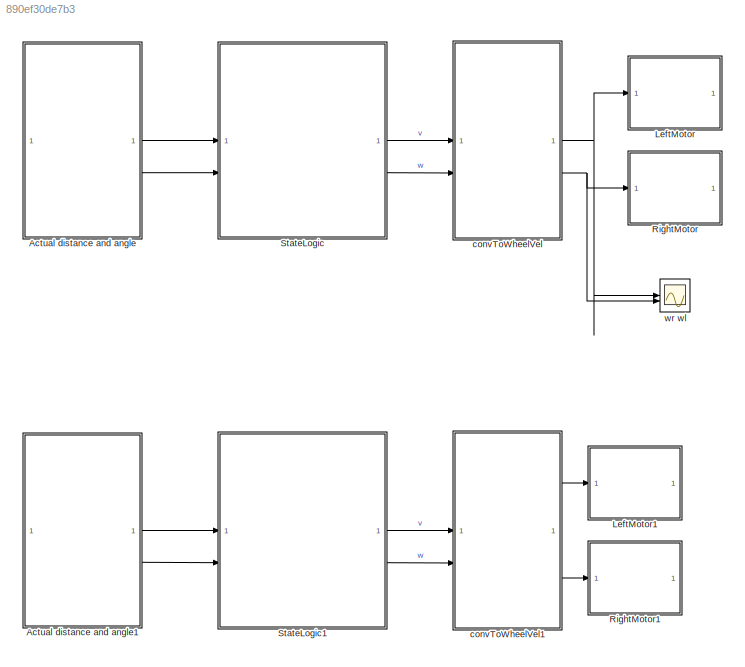
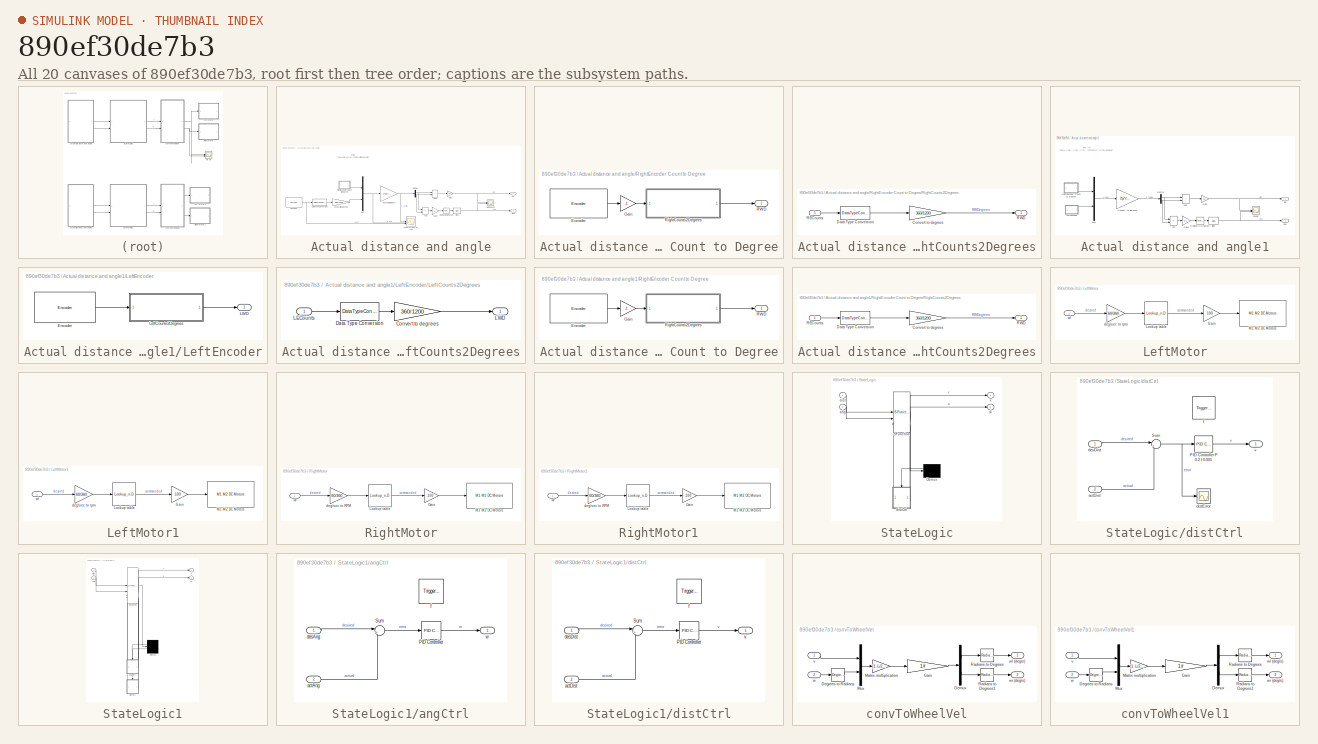
[diagram: thumbnail index - all 20 canvases of the model, root first then tree order]
MODEL slx_890ef30de7b3
KIND model
CONFIG AbsTol = auto
CONFIG EnableMultiTasking = on
CONFIG FixedStep = TS
CONFIG MaxStep = auto
CONFIG MinStep = auto
CONFIG PostLoadFcn = params\nload('motorResponse.mat')
CONFIG RelTol = 1e-3
CONFIG SampleTimeConstraint = Unconstrained
CONFIG SolverName = FixedStepAuto
CONFIG StartTime = 0.0
CONFIG StopTime = inf
WORKSPACE source: mxarray member
WORKSPACE TS = 0.01
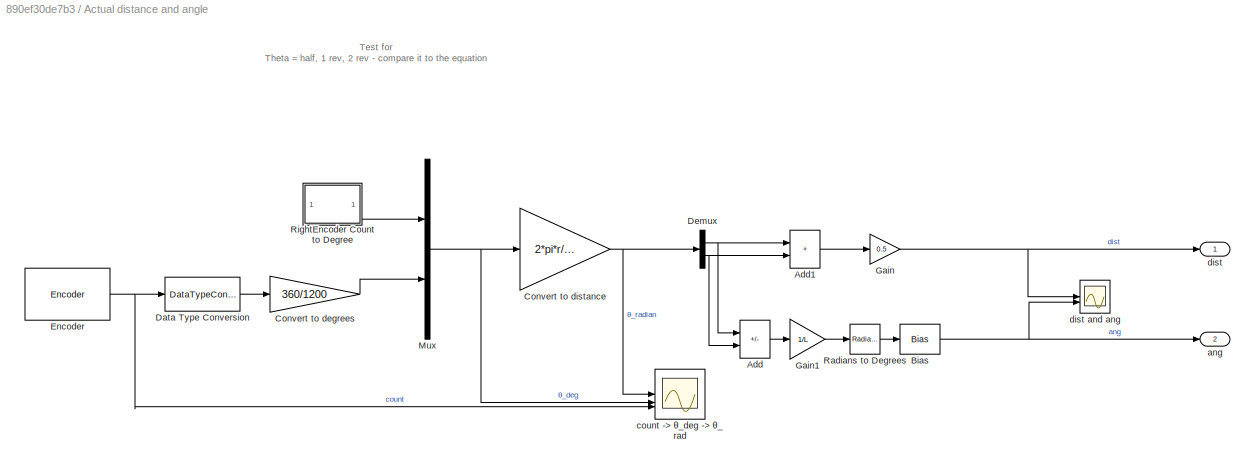
BLOCK [SubSystem] Actual distance and angle
BLOCK [Sum] Actual distance and angle/Add
  IconShape = rectangular
  Inputs = +-
BLOCK [Sum] Actual distance and angle/Add1
  IconShape = rectangular
BLOCK [Bias] Actual distance and angle/Bias
  Bias = StartTheta
  SaturateOnIntegerOverflow = off
BLOCK [Gain] Actual distance and angle/Convert to degrees
  Gain = 360/1200
BLOCK [Gain] Actual distance and angle/Convert to distance
  Gain = 2*pi*r/360
BLOCK [DataTypeConversion] Actual distance and angle/Data Type Conversion
  OutDataTypeStr = double
  RndMeth = Floor
  SaturateOnIntegerOverflow = off
BLOCK [Demux] Actual distance and angle/Demux
  Outputs = 2
BLOCK [Reference] Actual distance and angle/Encoder  REF=arduinomotorcarrierlib/Encoder
  SourceBlock = arduinomotorcarrierlib/Encoder
  SourceType = motorcarrier.blocks.mkrmotorcarrier_Encoder
BLOCK [Gain] Actual distance and angle/Gain
  Gain = 0.5
BLOCK [Gain] Actual distance and angle/Gain1
  Gain = 1/L
BLOCK [Mux] Actual distance and angle/Mux
  DisplayOption = bar
  Inputs = 2
BLOCK [Reference] Actual distance and angle/Radians to Degrees  REF=simulink_extras/Transformations/Radians
to Degrees
  SourceBlock = simulink_extras/Transformations/Radians\nto Degrees
  SourceType = RadiansToDegrees
BLOCK [SubSystem] Actual distance and angle/RightEncoder Count to Degree
BLOCK [Reference] Actual distance and angle/RightEncoder Count to Degree/Encoder  REF=arduinomotorcarrierlib/Encoder
  SourceBlock = arduinomotorcarrierlib/Encoder
  SourceType = motorcarrier.blocks.mkrmotorcarrier_Encoder
BLOCK [Gain] Actual distance and angle/RightEncoder Count to Degree/Gain
  Gain = -1
BLOCK [Outport] Actual distance and angle/RightEncoder Count to Degree/RWD
  VectorParamsAs1DForOutWhenUnconnected = off
BLOCK [SubSystem] Actual distance and angle/RightEncoder Count to Degree/RightCounts2Degrees
BLOCK [Gain] Actual distance and angle/RightEncoder Count to Degree/RightCounts2Degrees/Convert to degrees
  Gain = 360/1200
BLOCK [DataTypeConversion] Actual distance and angle/RightEncoder Count to Degree/RightCounts2Degrees/Data Type Conversion
  OutDataTypeStr = double
  RndMeth = Floor
  SaturateOnIntegerOverflow = off
BLOCK [Inport] Actual distance and angle/RightEncoder Count to Degree/RightCounts2Degrees/RECounts
BLOCK [Outport] Actual distance and angle/RightEncoder Count to Degree/RightCounts2Degrees/RWD
  VectorParamsAs1DForOutWhenUnconnected = off
BLOCK [Outport] Actual distance and angle/ang
  Port = 2
  VectorParamsAs1DForOutWhenUnconnected = off
BLOCK [Scope] Actual distance and angle/count -> θ_deg -> θ_rad
  Floating = off
  NumInputPorts = 3
  ScopeSpecificationString = Simulink.scopes.TimeScopeBlockCfg('CurrentConfiguration', extmgr.ConfigurationSet(extmgr.Configuration('Core','General UI',true),extmgr.Configuration('Core','Source UI',true),extmgr.Configuration('Sources','WiredSimulink',true,'DataLoggingVariableName','ScopeData2'),extmgr.Configuration('Visuals','Time Domain',true,'SerializedDisplays',{struct('MinYLimReal','41.80773','MaxYLimReal','65.28131','YLa...<+2305ch>
BLOCK [Outport] Actual distance and angle/dist
  VectorParamsAs1DForOutWhenUnconnected = off
BLOCK [Scope] Actual distance and angle/dist and ang
  Floating = off
  NumInputPorts = 2
  ScopeSpecificationString = Simulink.scopes.TimeScopeBlockCfg('CurrentConfiguration', extmgr.ConfigurationSet(extmgr.Configuration('Core','General UI',true),extmgr.Configuration('Core','Source UI',true),extmgr.Configuration('Sources','WiredSimulink',true),extmgr.Configuration('Visuals','Time Domain',true,'SerializedDisplays',{struct('MinYLimReal','43.54452','MaxYLimReal','63.54452','YLabelReal','','MinYLimMag','43.54452','Ma...<+2201ch>
BLOCK [SubSystem] Actual distance and angle1
  Commented = on
BLOCK [Sum] Actual distance and angle1/Add
  IconShape = rectangular
  Inputs = +-
BLOCK [Sum] Actual distance and angle1/Add1
  IconShape = rectangular
BLOCK [Bias] Actual distance and angle1/Bias
  Bias = StartTheta
  SaturateOnIntegerOverflow = off
BLOCK [Gain] Actual distance and angle1/Convert to distance
  Gain = 2*pi*r/360
BLOCK [Demux] Actual distance and angle1/Demux
  Outputs = 2
BLOCK [Gain] Actual distance and angle1/Gain
  Gain = 0.5
BLOCK [Gain] Actual distance and angle1/Gain1
  Gain = 1/L
BLOCK [SubSystem] Actual distance and angle1/LeftEncoder
BLOCK [Reference] Actual distance and angle1/LeftEncoder/Encoder  REF=arduinomotorcarrierlib/Encoder
  SourceBlock = arduinomotorcarrierlib/Encoder
  SourceType = motorcarrier.blocks.mkrmotorcarrier_Encoder
BLOCK [Outport] Actual distance and angle1/LeftEncoder/LWD
  VectorParamsAs1DForOutWhenUnconnected = off
BLOCK [SubSystem] Actual distance and angle1/LeftEncoder/LeftCounts2Degrees
BLOCK [Gain] Actual distance and angle1/LeftEncoder/LeftCounts2Degrees/Convert to degrees
  Gain = 360/1200
BLOCK [DataTypeConversion] Actual distance and angle1/LeftEncoder/LeftCounts2Degrees/Data Type Conversion
  OutDataTypeStr = double
  RndMeth = Floor
  SaturateOnIntegerOverflow = off
BLOCK [Inport] Actual distance and angle1/LeftEncoder/LeftCounts2Degrees/LECounts
BLOCK [Outport] Actual distance and angle1/LeftEncoder/LeftCounts2Degrees/LWD
  VectorParamsAs1DForOutWhenUnconnected = off
BLOCK [Mux] Actual distance and angle1/Mux
  DisplayOption = bar
  Inputs = 2
BLOCK [Reference] Actual distance and angle1/Radians to Degrees  REF=simulink_extras/Transformations/Radians
to Degrees
  SourceBlock = simulink_extras/Transformations/Radians\nto Degrees
  SourceType = RadiansToDegrees
BLOCK [SubSystem] Actual distance and angle1/RightEncoder Count to Degree
BLOCK [Reference] Actual distance and angle1/RightEncoder Count to Degree/Encoder  REF=arduinomotorcarrierlib/Encoder
  SourceBlock = arduinomotorcarrierlib/Encoder
  SourceType = motorcarrier.blocks.mkrmotorcarrier_Encoder
BLOCK [Gain] Actual distance and angle1/RightEncoder Count to Degree/Gain
  Gain = -1
BLOCK [Outport] Actual distance and angle1/RightEncoder Count to Degree/RWD
  VectorParamsAs1DForOutWhenUnconnected = off
BLOCK [SubSystem] Actual distance and angle1/RightEncoder Count to Degree/RightCounts2Degrees
BLOCK [Gain] Actual distance and angle1/RightEncoder Count to Degree/RightCounts2Degrees/Convert to degrees
  Gain = 360/1200
BLOCK [DataTypeConversion] Actual distance and angle1/RightEncoder Count to Degree/RightCounts2Degrees/Data Type Conversion
  OutDataTypeStr = double
  RndMeth = Floor
  SaturateOnIntegerOverflow = off
BLOCK [Inport] Actual distance and angle1/RightEncoder Count to Degree/RightCounts2Degrees/RECounts
BLOCK [Outport] Actual distance and angle1/RightEncoder Count to Degree/RightCounts2Degrees/RWD
  VectorParamsAs1DForOutWhenUnconnected = off
BLOCK [Scope] Actual distance and angle1/Scope
  Floating = off
  NumInputPorts = 2
  ScopeSpecificationString = Simulink.scopes.TimeScopeBlockCfg('CurrentConfiguration', extmgr.ConfigurationSet(extmgr.Configuration('Core','General UI',true),extmgr.Configuration('Core','Source UI',true),extmgr.Configuration('Sources','WiredSimulink',true),extmgr.Configuration('Visuals','Time Domain',true,'SerializedDisplays',{struct('MinYLimReal','-0.45209','MaxYLimReal','4.06885','YLabelReal','','MinYLimMag','0.00000','MaxY...<+2168ch>
BLOCK [Outport] Actual distance and angle1/ang
  Port = 2
  VectorParamsAs1DForOutWhenUnconnected = off
BLOCK [Outport] Actual distance and angle1/dist
  VectorParamsAs1DForOutWhenUnconnected = off
BLOCK [SubSystem] LeftMotor
BLOCK [Gain] LeftMotor/Gain
  Gain = 100
BLOCK [Lookup_n-D] LeftMotor/Lookup table
  BreakpointsForDimension1 = speedMono
  InputPortMap = u0
  InternalRulePriority = Speed
  NumberOfTableDimensions = 1
  RndMeth = Simplest
  Table = PWMcmdMono
  UseLastTableValue = on
BLOCK [Reference] LeftMotor/M1 M2 DC Motors  REF=arduinomotorcarrierlib/M1 M2 DC Motors
  SourceBlock = arduinomotorcarrierlib/M1 M2 DC Motors
  SourceType = DC Motor
BLOCK [Gain] LeftMotor/deg//sec to rpm
  Gain = 60/360
BLOCK [Inport] LeftMotor/wl
BLOCK [SubSystem] LeftMotor1
  Commented = on
BLOCK [Gain] LeftMotor1/Gain
  Gain = 100
BLOCK [Lookup_n-D] LeftMotor1/Lookup table
  BreakpointsForDimension1 = speedMono
  InputPortMap = u0
  InternalRulePriority = Speed
  NumberOfTableDimensions = 1
  RndMeth = Simplest
  Table = PWMcmdMono
  UseLastTableValue = on
BLOCK [Reference] LeftMotor1/M1 M2 DC Motors  REF=arduinomotorcarrierlib/M1 M2 DC Motors
  SourceBlock = arduinomotorcarrierlib/M1 M2 DC Motors
  SourceType = DC Motor
BLOCK [Gain] LeftMotor1/deg//sec to rpm
  Gain = 60/360
BLOCK [Inport] LeftMotor1/wl
BLOCK [SubSystem] RightMotor
BLOCK [Gain] RightMotor/Gain
  Gain = -100
BLOCK [Lookup_n-D] RightMotor/Lookup table
  BreakpointsForDimension1 = speedMono
  InputPortMap = u0
  InternalRulePriority = Speed
  NumberOfTableDimensions = 1
  RndMeth = Simplest
  Table = PWMcmdMono
  UseLastTableValue = on
BLOCK [Reference] RightMotor/M1 M2 DC Motors  REF=arduinomotorcarrierlib/M1 M2 DC Motors
  SourceBlock = arduinomotorcarrierlib/M1 M2 DC Motors
  SourceType = DC Motor
BLOCK [Gain] RightMotor/deg//sec to RPM
  Gain = 60/360
BLOCK [Inport] RightMotor/wr
BLOCK [SubSystem] RightMotor1
  Commented = on
BLOCK [Gain] RightMotor1/Gain
  Gain = -100
BLOCK [Lookup_n-D] RightMotor1/Lookup table
  BreakpointsForDimension1 = speedMono
  InputPortMap = u0
  InternalRulePriority = Speed
  NumberOfTableDimensions = 1
  RndMeth = Simplest
  Table = PWMcmdMono
  UseLastTableValue = on
BLOCK [Reference] RightMotor1/M1 M2 DC Motors  REF=arduinomotorcarrierlib/M1 M2 DC Motors
  SourceBlock = arduinomotorcarrierlib/M1 M2 DC Motors
  SourceType = DC Motor
BLOCK [Gain] RightMotor1/deg//sec to RPM
  Gain = 60/360
BLOCK [Inport] RightMotor1/wr
BLOCK [SubSystem] StateLogic
  ErrorFcn = Stateflow.Translate.translate
  PermitHierarchicalResolution = ExplicitOnly
  SFBlockType = Chart
  TreatAsAtomicUnit = on
BLOCK [Demux] StateLogic/ Demux 
  Outputs = 1
BLOCK [S-Function] StateLogic/ SFunction 
  EnableBusSupport = on
  FunctionName = sf_sfun
  PortCounts = [3 5]
  SFcnIsStateOwnerBlock = off
  SFunctionDeploymentMode = off
  Tag = Stateflow S-Function 3
BLOCK [Inport] StateLogic/ang
  Port = 2
BLOCK [Inport] StateLogic/dist
BLOCK [SubSystem] StateLogic/distCtrl
  PreDeleteFcn = Stateflow.SLINSF.SimulinkMan.removePreDeleteFcn
  UndoDeleteFcn = Stateflow.SLINSF.SimulinkMan.restorePreDeleteFcn
BLOCK [Reference] StateLogic/distCtrl/PID Controller P 0.2 I 0.001  REF=slpidlib/PID Controller
  SourceBlock = slpidlib/PID Controller
  SourceType = PID 1dof
BLOCK [Sum] StateLogic/distCtrl/Sum
  Inputs = |+-
BLOCK [Inport] StateLogic/distCtrl/actDist
  OutDataTypeStr = double
  Port = 2
  PortDimensions = 1
  SignalType = real
  VarSizeSig = No
BLOCK [Inport] StateLogic/distCtrl/desDist
  OutDataTypeStr = double
  PortDimensions = 1
  SignalType = real
  VarSizeSig = No
BLOCK [Scope] StateLogic/distCtrl/distError
  Floating = off
  NumInputPorts = 1
  ScopeSpecificationString = Simulink.scopes.TimeScopeBlockCfg('CurrentConfiguration', extmgr.ConfigurationSet(extmgr.Configuration('Core','General UI',true),extmgr.Configuration('Core','Source UI',true),extmgr.Configuration('Sources','WiredSimulink',true,'DataLoggingVariableName','ScopeData1'),extmgr.Configuration('Visuals','Time Domain',true,'SerializedDisplays',{struct('MinYLimReal','-6.25','MaxYLimReal','56.25','YLabelRea...<+1495ch>
BLOCK [TriggerPort] StateLogic/distCtrl/f
  CopyFcn = Stateflow.SLINSF.SimulinkMan.removeBlockPreDeleteFcn
  PreDeleteFcn = Stateflow.SLINSF.SimulinkMan.unsafePredeleteFcn
  StatesWhenEnabling = held
  TriggerType = function-call
  VariantControl = (inherit)
BLOCK [Outport] StateLogic/distCtrl/v
  VectorParamsAs1DForOutWhenUnconnected = off
BLOCK [Outport] StateLogic/v
  VectorParamsAs1DForOutWhenUnconnected = off
BLOCK [Outport] StateLogic/w
  Port = 2
  VectorParamsAs1DForOutWhenUnconnected = off
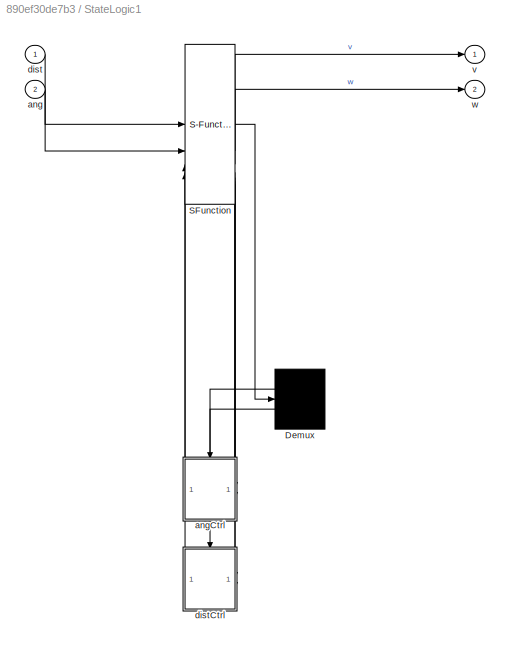
BLOCK [SubSystem] StateLogic1
  Commented = on
  ErrorFcn = Stateflow.Translate.translate
  PermitHierarchicalResolution = ExplicitOnly
  SFBlockType = Chart
  TreatAsAtomicUnit = on
BLOCK [Demux] StateLogic1/ Demux 
  Outputs = 2
BLOCK [S-Function] StateLogic1/ SFunction 
  EnableBusSupport = off
  FunctionName = sf_sfun
  PortCounts = [4 7]
  SFcnIsStateOwnerBlock = off
  SFunctionDeploymentMode = off
  Tag = Stateflow S-Function 1
BLOCK [Inport] StateLogic1/ang
  Port = 2
BLOCK [SubSystem] StateLogic1/angCtrl
  PreDeleteFcn = Stateflow.SLINSF.SimulinkMan.removePreDeleteFcn
  UndoDeleteFcn = Stateflow.SLINSF.SimulinkMan.restorePreDeleteFcn
BLOCK [Reference] StateLogic1/angCtrl/PID Controller  REF=slpidlib/PID Controller
  SourceBlock = slpidlib/PID Controller
  SourceType = PID 1dof
BLOCK [Sum] StateLogic1/angCtrl/Sum
  Inputs = |+-
BLOCK [Inport] StateLogic1/angCtrl/actAng
  OutDataTypeStr = double
  Port = 2
  PortDimensions = 1
  SignalType = real
  VarSizeSig = No
BLOCK [Inport] StateLogic1/angCtrl/desAng
  OutDataTypeStr = double
  PortDimensions = 1
  SignalType = real
  VarSizeSig = No
BLOCK [TriggerPort] StateLogic1/angCtrl/f
  CopyFcn = Stateflow.SLINSF.SimulinkMan.removeBlockPreDeleteFcn
  PreDeleteFcn = Stateflow.SLINSF.SimulinkMan.unsafePredeleteFcn
  StatesWhenEnabling = held
  TriggerType = function-call
  VariantControl = (inherit)
BLOCK [Outport] StateLogic1/angCtrl/w
  VectorParamsAs1DForOutWhenUnconnected = off
BLOCK [Inport] StateLogic1/dist
BLOCK [SubSystem] StateLogic1/distCtrl
  PreDeleteFcn = Stateflow.SLINSF.SimulinkMan.removePreDeleteFcn
  UndoDeleteFcn = Stateflow.SLINSF.SimulinkMan.restorePreDeleteFcn
BLOCK [Reference] StateLogic1/distCtrl/PID Controller  REF=slpidlib/PID Controller
  SourceBlock = slpidlib/PID Controller
  SourceType = PID 1dof
BLOCK [Sum] StateLogic1/distCtrl/Sum
  Inputs = |+-
BLOCK [Inport] StateLogic1/distCtrl/actDist
  OutDataTypeStr = double
  Port = 2
  PortDimensions = 1
  SignalType = real
  VarSizeSig = No
BLOCK [Inport] StateLogic1/distCtrl/desDist
  OutDataTypeStr = double
  PortDimensions = 1
  SignalType = real
  VarSizeSig = No
BLOCK [TriggerPort] StateLogic1/distCtrl/f
  CopyFcn = Stateflow.SLINSF.SimulinkMan.removeBlockPreDeleteFcn
  PreDeleteFcn = Stateflow.SLINSF.SimulinkMan.unsafePredeleteFcn
  StatesWhenEnabling = held
  TriggerType = function-call
  VariantControl = (inherit)
BLOCK [Outport] StateLogic1/distCtrl/v
  VectorParamsAs1DForOutWhenUnconnected = off
BLOCK [Outport] StateLogic1/v
  VectorParamsAs1DForOutWhenUnconnected = off
BLOCK [Outport] StateLogic1/w
  Port = 2
  VectorParamsAs1DForOutWhenUnconnected = off
BLOCK [SubSystem] convToWheelVel
BLOCK [Gain] convToWheelVel/ Gain
  Gain = 1/r
  Multiplication = Matrix(K*u)
BLOCK [Reference] convToWheelVel/Degrees to Radians  REF=simulink_extras/Transformations/Degrees to
Radians
  SourceBlock = simulink_extras/Transformations/Degrees to\nRadians
  SourceType = DegreesToRadians
BLOCK [Demux] convToWheelVel/Demux
  Outputs = 2
BLOCK [Gain] convToWheelVel/Matrix multiplication
  Gain = [1 -L/2; 1 L/2]
  Multiplication = Matrix(K*u)
BLOCK [Mux] convToWheelVel/Mux
  DisplayOption = bar
  Inputs = 2
BLOCK [Reference] convToWheelVel/Radians to Degrees  REF=simulink_extras/Transformations/Radians
to Degrees
  SourceBlock = simulink_extras/Transformations/Radians\nto Degrees
  SourceType = RadiansToDegrees
BLOCK [Reference] convToWheelVel/Radians to Degrees1  REF=simulink_extras/Transformations/Radians
to Degrees
  SourceBlock = simulink_extras/Transformations/Radians\nto Degrees
  SourceType = RadiansToDegrees
BLOCK [Inport] convToWheelVel/v
BLOCK [Inport] convToWheelVel/w
  Port = 2
BLOCK [Outport] convToWheelVel/wl (deg//s)
  VectorParamsAs1DForOutWhenUnconnected = off
BLOCK [Outport] convToWheelVel/wr (deg//s)
  Port = 2
  VectorParamsAs1DForOutWhenUnconnected = off
BLOCK [SubSystem] convToWheelVel1
  Commented = on
BLOCK [Gain] convToWheelVel1/ Gain
  Gain = 1/r
  Multiplication = Matrix(K*u)
BLOCK [Reference] convToWheelVel1/Degrees to Radians  REF=simulink_extras/Transformations/Degrees to
Radians
  SourceBlock = simulink_extras/Transformations/Degrees to\nRadians
  SourceType = DegreesToRadians
BLOCK [Demux] convToWheelVel1/Demux
  Outputs = 2
BLOCK [Gain] convToWheelVel1/Matrix multiplication
  Gain = [1 -L/2; 1 L/2]
  Multiplication = Matrix(K*u)
BLOCK [Mux] convToWheelVel1/Mux
  DisplayOption = bar
  Inputs = 2
BLOCK [Reference] convToWheelVel1/Radians to Degrees  REF=simulink_extras/Transformations/Radians
to Degrees
  SourceBlock = simulink_extras/Transformations/Radians\nto Degrees
  SourceType = RadiansToDegrees
BLOCK [Reference] convToWheelVel1/Radians to Degrees1  REF=simulink_extras/Transformations/Radians
to Degrees
  SourceBlock = simulink_extras/Transformations/Radians\nto Degrees
  SourceType = RadiansToDegrees
BLOCK [Inport] convToWheelVel1/v
BLOCK [Inport] convToWheelVel1/w
  Port = 2
BLOCK [Outport] convToWheelVel1/wl (deg//s)
  VectorParamsAs1DForOutWhenUnconnected = off
BLOCK [Outport] convToWheelVel1/wr (deg//s)
  Port = 2
  VectorParamsAs1DForOutWhenUnconnected = off
BLOCK [Scope] wr wl
  Floating = off
  NumInputPorts = 2
  ScopeSpecificationString = Simulink.scopes.TimeScopeBlockCfg('CurrentConfiguration', extmgr.ConfigurationSet(extmgr.Configuration('Core','General UI',true),extmgr.Configuration('Core','Source UI',true),extmgr.Configuration('Sources','WiredSimulink',true,'DataLoggingVariableName','ScopeData1'),extmgr.Configuration('Visuals','Time Domain',true,'SerializedDisplays',{struct('MinYLimReal','-477.8856','MaxYLimReal','4300.97044','...<+1595ch>
ANNOTATION Actual distance and angle: Test for Theta = half, 1 rev, 2 rev - compare it to the equation
ANNOTATION Actual distance and angle1: Test for Theta = half, 1 rev, 2 rev - compare it to the equation
LINE Actual distance and angle/Add1:1 -> Actual distance and angle/Gain:1
LINE Actual distance and angle/Add:1 -> Actual distance and angle/Gain1:1
NET Actual distance and angle/Bias:1 -> Actual distance and angle/ang:1, Actual distance and angle/dist and ang:2
LINE Actual distance and angle/Convert to degrees:1 -> Actual distance and angle/Mux:2
NET Actual distance and angle/Convert to distance:1 -> Actual distance and angle/Demux:1, Actual distance and angle/count -> θ_deg -> θ_rad:1
LINE Actual distance and angle/Data Type Conversion:1 -> Actual distance and angle/Convert to degrees:1
NET Actual distance and angle/Demux:1 -> Actual distance and angle/Add1:1, Actual distance and angle/Add:1
NET Actual distance and angle/Demux:2 -> Actual distance and angle/Add1:2, Actual distance and angle/Add:2
NET Actual distance and angle/Encoder:1 -> Actual distance and angle/Data Type Conversion:1, Actual distance and angle/count -> θ_deg -> θ_rad:3
LINE Actual distance and angle/Gain1:1 -> Actual distance and angle/Radians to Degrees:1
NET Actual distance and angle/Gain:1 -> Actual distance and angle/dist and ang:1, Actual distance and angle/dist:1
NET Actual distance and angle/Mux:1 -> Actual distance and angle/Convert to distance:1, Actual distance and angle/count -> θ_deg -> θ_rad:2
LINE Actual distance and angle/Radians to Degrees:1 -> Actual distance and angle/Bias:1
LINE Actual distance and angle/RightEncoder Count to Degree/Encoder:1 -> Actual distance and angle/RightEncoder Count to Degree/Gain:1
LINE Actual distance and angle/RightEncoder Count to Degree/Gain:1 -> Actual distance and angle/RightEncoder Count to Degree/RightCounts2Degrees:1
LINE Actual distance and angle/RightEncoder Count to Degree/RightCounts2Degrees/Convert to degrees:1 -> Actual distance and angle/RightEncoder Count to Degree/RightCounts2Degrees/RWD:1
LINE Actual distance and angle/RightEncoder Count to Degree/RightCounts2Degrees/Data Type Conversion:1 -> Actual distance and angle/RightEncoder Count to Degree/RightCounts2Degrees/Convert to degrees:1
LINE Actual distance and angle/RightEncoder Count to Degree/RightCounts2Degrees/RECounts:1 -> Actual distance and angle/RightEncoder Count to Degree/RightCounts2Degrees/Data Type Conversion:1
LINE Actual distance and angle/RightEncoder Count to Degree/RightCounts2Degrees:1 -> Actual distance and angle/RightEncoder Count to Degree/RWD:1
LINE Actual distance and angle/RightEncoder Count to Degree:1 -> Actual distance and angle/Mux:1
LINE Actual distance and angle1/Add1:1 -> Actual distance and angle1/Gain:1
LINE Actual distance and angle1/Add:1 -> Actual distance and angle1/Gain1:1
NET Actual distance and angle1/Bias:1 -> Actual distance and angle1/Scope:2, Actual distance and angle1/ang:1
LINE Actual distance and angle1/Convert to distance:1 -> Actual distance and angle1/Demux:1
NET Actual distance and angle1/Demux:1 -> Actual distance and angle1/Add1:1, Actual distance and angle1/Add:1
NET Actual distance and angle1/Demux:2 -> Actual distance and angle1/Add1:2, Actual distance and angle1/Add:2
LINE Actual distance and angle1/Gain1:1 -> Actual distance and angle1/Radians to Degrees:1
NET Actual distance and angle1/Gain:1 -> Actual distance and angle1/Scope:1, Actual distance and angle1/dist:1
LINE Actual distance and angle1/LeftEncoder/Encoder:1 -> Actual distance and angle1/LeftEncoder/LeftCounts2Degrees:1
LINE Actual distance and angle1/LeftEncoder/LeftCounts2Degrees/Convert to degrees:1 -> Actual distance and angle1/LeftEncoder/LeftCounts2Degrees/LWD:1
LINE Actual distance and angle1/LeftEncoder/LeftCounts2Degrees/Data Type Conversion:1 -> Actual distance and angle1/LeftEncoder/LeftCounts2Degrees/Convert to degrees:1
LINE Actual distance and angle1/LeftEncoder/LeftCounts2Degrees/LECounts:1 -> Actual distance and angle1/LeftEncoder/LeftCounts2Degrees/Data Type Conversion:1
LINE Actual distance and angle1/LeftEncoder/LeftCounts2Degrees:1 -> Actual distance and angle1/LeftEncoder/LWD:1
LINE Actual distance and angle1/LeftEncoder:1 -> Actual distance and angle1/Mux:2
LINE Actual distance and angle1/Mux:1 -> Actual distance and angle1/Convert to distance:1
LINE Actual distance and angle1/Radians to Degrees:1 -> Actual distance and angle1/Bias:1
LINE Actual distance and angle1/RightEncoder Count to Degree/Encoder:1 -> Actual distance and angle1/RightEncoder Count to Degree/Gain:1
LINE Actual distance and angle1/RightEncoder Count to Degree/Gain:1 -> Actual distance and angle1/RightEncoder Count to Degree/RightCounts2Degrees:1
LINE Actual distance and angle1/RightEncoder Count to Degree/RightCounts2Degrees/Convert to degrees:1 -> Actual distance and angle1/RightEncoder Count to Degree/RightCounts2Degrees/RWD:1
LINE Actual distance and angle1/RightEncoder Count to Degree/RightCounts2Degrees/Data Type Conversion:1 -> Actual distance and angle1/RightEncoder Count to Degree/RightCounts2Degrees/Convert to degrees:1
LINE Actual distance and angle1/RightEncoder Count to Degree/RightCounts2Degrees/RECounts:1 -> Actual distance and angle1/RightEncoder Count to Degree/RightCounts2Degrees/Data Type Conversion:1
LINE Actual distance and angle1/RightEncoder Count to Degree/RightCounts2Degrees:1 -> Actual distance and angle1/RightEncoder Count to Degree/RWD:1
LINE Actual distance and angle1/RightEncoder Count to Degree:1 -> Actual distance and angle1/Mux:1
LINE Actual distance and angle1:1 -> StateLogic1:1
LINE Actual distance and angle1:2 -> StateLogic1:2
LINE Actual distance and angle:1 -> StateLogic:1
LINE Actual distance and angle:2 -> StateLogic:2
LINE LeftMotor/Gain:1 -> LeftMotor/M1 M2 DC Motors:1
LINE LeftMotor/Lookup table:1 -> LeftMotor/Gain:1
LINE LeftMotor/deg//sec to rpm:1 -> LeftMotor/Lookup table:1
LINE LeftMotor/wl:1 -> LeftMotor/deg//sec to rpm:1
LINE LeftMotor1/Gain:1 -> LeftMotor1/M1 M2 DC Motors:1
LINE LeftMotor1/Lookup table:1 -> LeftMotor1/Gain:1
LINE LeftMotor1/deg//sec to rpm:1 -> LeftMotor1/Lookup table:1
LINE LeftMotor1/wl:1 -> LeftMotor1/deg//sec to rpm:1
LINE RightMotor/Gain:1 -> RightMotor/M1 M2 DC Motors:1
LINE RightMotor/Lookup table:1 -> RightMotor/Gain:1
LINE RightMotor/deg//sec to RPM:1 -> RightMotor/Lookup table:1
LINE RightMotor/wr:1 -> RightMotor/deg//sec to RPM:1
LINE RightMotor1/Gain:1 -> RightMotor1/M1 M2 DC Motors:1
LINE RightMotor1/Lookup table:1 -> RightMotor1/Gain:1
LINE RightMotor1/deg//sec to RPM:1 -> RightMotor1/Lookup table:1
LINE RightMotor1/wr:1 -> RightMotor1/deg//sec to RPM:1
LINE StateLogic1:1 -> convToWheelVel1:1
LINE StateLogic1:2 -> convToWheelVel1:2
LINE StateLogic:1 -> convToWheelVel:1
LINE StateLogic:2 -> convToWheelVel:2
LINE convToWheelVel/ Gain:1 -> convToWheelVel/Demux:1
LINE convToWheelVel/Degrees to Radians:1 -> convToWheelVel/Mux:2
LINE convToWheelVel/Demux:1 -> convToWheelVel/Radians to Degrees:1
LINE convToWheelVel/Demux:2 -> convToWheelVel/Radians to Degrees1:1
LINE convToWheelVel/Matrix multiplication:1 -> convToWheelVel/ Gain:1
LINE convToWheelVel/Mux:1 -> convToWheelVel/Matrix multiplication:1
LINE convToWheelVel/Radians to Degrees1:1 -> convToWheelVel/wr (deg//s):1
LINE convToWheelVel/Radians to Degrees:1 -> convToWheelVel/wl (deg//s):1
LINE convToWheelVel/v:1 -> convToWheelVel/Mux:1
LINE convToWheelVel/w:1 -> convToWheelVel/Degrees to Radians:1
LINE convToWheelVel1/ Gain:1 -> convToWheelVel1/Demux:1
LINE convToWheelVel1/Degrees to Radians:1 -> convToWheelVel1/Mux:2
LINE convToWheelVel1/Demux:1 -> convToWheelVel1/Radians to Degrees:1
LINE convToWheelVel1/Demux:2 -> convToWheelVel1/Radians to Degrees1:1
LINE convToWheelVel1/Matrix multiplication:1 -> convToWheelVel1/ Gain:1
LINE convToWheelVel1/Mux:1 -> convToWheelVel1/Matrix multiplication:1
LINE convToWheelVel1/Radians to Degrees1:1 -> convToWheelVel1/wr (deg//s):1
LINE convToWheelVel1/Radians to Degrees:1 -> convToWheelVel1/wl (deg//s):1
LINE convToWheelVel1/v:1 -> convToWheelVel1/Mux:1
LINE convToWheelVel1/w:1 -> convToWheelVel1/Degrees to Radians:1
LINE convToWheelVel1:1 -> LeftMotor1:1
LINE convToWheelVel1:2 -> RightMotor1:1
NET convToWheelVel:1 -> LeftMotor:1, wr wl:1
NET convToWheelVel:2 -> RightMotor:1, wr wl:2
note: NET lines group one-source signal fan-out (src -> all destinations, sorted); 1:1 wires keep LINE
CHART StateLogic states=5 transitions=3
  STATE_LABEL 'StopFirst\nentry:\nv = 0; w= 0;\n'
  STATE_LABEL 'MoveForward\nentry:\ndesDist = 50;\nduring, exit:\nv = distCtrl(desDist,dist);\nw = 0;\n'
  STATE_LABEL 'v = distCtrl(desDist,actDist)'
  STATE_LABEL '30 cm\nr = 4.5 cm\nΔx = r*θ = 4.5(2*pi) = '
  STATE_LABEL 'Stop\nentry:\nv = 0;\nw = 0;'
CHART StateLogic1 states=7 transitions=5
  STATE_LABEL 'StopFirst\nentry:\nv = 0; w= 0;\n'
  STATE_LABEL 'v = distCtrl(desDist,actDist)'
  STATE_LABEL 'MoveForward\nentry:\ndesDist = 30;\nduring, exit:\nv = distCtrl(desDist,dist);\nw = 0;\n'
  STATE_LABEL 'w = angCtrl(desAng,actAng)'
  STATE_LABEL 'Pause\nentry:\nv = 0;\nw = 0;\n'
  STATE_LABEL 'Turn\nentry:\ndesAng = 180;\nduring, exit:\nv = 0;\nw = angCtrl(desAng,ang);\n'
  STATE_LABEL 'Stop\nentry:\nv = 0;\nw = 0;'
CHART  states=0 transitions=0
CHART  states=0 transitions=0
